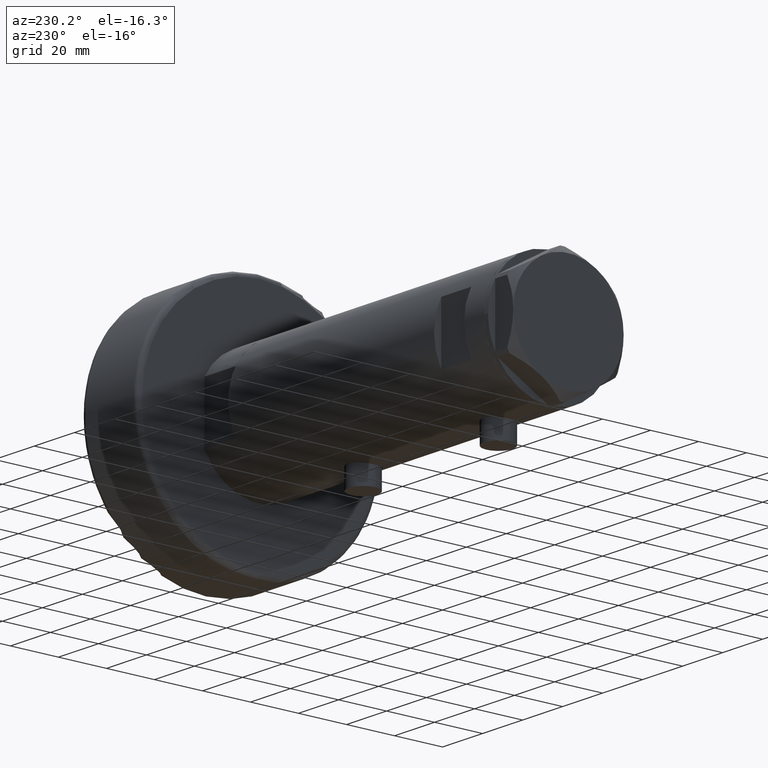
[diagram: clean part render]
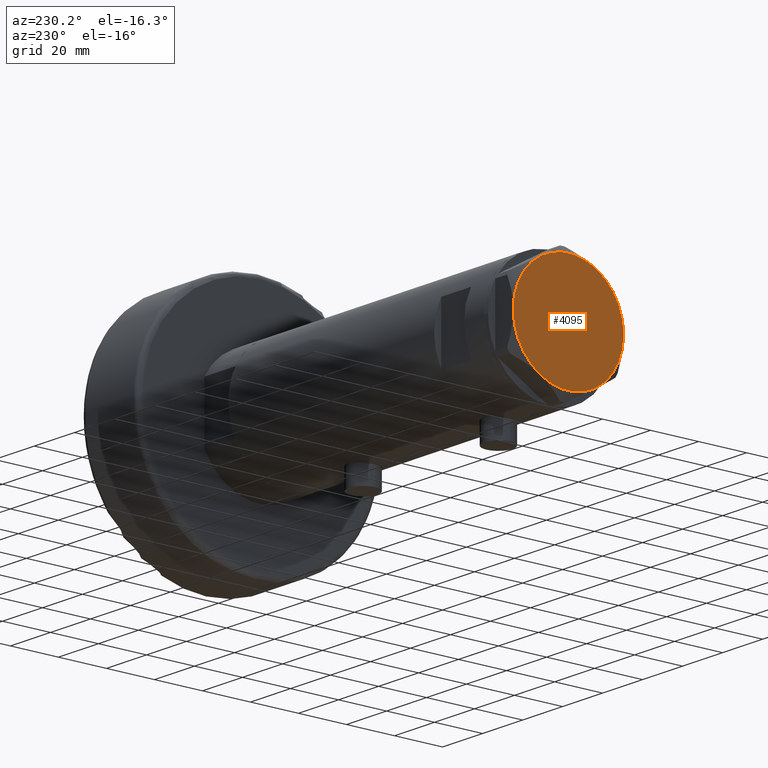
[diagram: same view with one face highlighted and labeled with its STEP entity id]
A machine part, auxiliary view. The second image highlights one B-rep face of the part: STEP entity #4095.
In plain terms, the highlighted planar face has unit normal (-1, -0, 0).
Its self-contained STEP definition (entity closure, byte-faithful):
#48 = ORIENTED_EDGE ( 'NONE', *, *, #2346, .T. ) ;
#110 = FACE_OUTER_BOUND ( 'NONE', #3020, .T. ) ;
#423 = CIRCLE ( 'NONE', #1536, 23.00000000000004619 ) ;
#429 = DIRECTION ( 'NONE',  ( 0.000000000000000000, 0.000000000000000000, 1.000000000000000000 ) ) ;
#563 = DIRECTION ( 'NONE',  ( 1.000000000000000000, 0.000000000000000000, -0.000000000000000000 ) ) ;
#647 = ORIENTED_EDGE ( 'NONE', *, *, #1404, .T. ) ;
#820 = CARTESIAN_POINT ( 'NONE',  ( 0.000000000000000000, 0.000000000000000000, 9.000000000000000000 ) ) ;
#1030 = AXIS2_PLACEMENT_3D ( 'NONE', #4911, #1735, #563 ) ;
#1112 = CIRCLE ( 'NONE', #5248, 23.00000000000004619 ) ;
#1247 = EDGE_CURVE ( 'NONE', #4931, #1373, #3893, .T. ) ;
#1252 = EDGE_CURVE ( 'NONE', #1733, #2487, #3730, .T. ) ;
#1305 = DIRECTION ( 'NONE',  ( 0.000000000000000000, 0.000000000000000000, 1.000000000000000000 ) ) ;
#1373 = VERTEX_POINT ( 'NONE', #3324 ) ;
#1404 = EDGE_CURVE ( 'NONE', #2487, #2126, #1525, .T. ) ;
#1525 = CIRCLE ( 'NONE', #2860, 23.00000000000004619 ) ;
#1536 = AXIS2_PLACEMENT_3D ( 'NONE', #2525, #1683, #4596 ) ;
#1578 = DIRECTION ( 'NONE',  ( 1.000000000000000000, 0.000000000000000000, 0.000000000000000000 ) ) ;
#1619 = ORIENTED_EDGE ( 'NONE', *, *, #1252, .T. ) ;
#1683 = DIRECTION ( 'NONE',  ( 0.000000000000000000, 0.000000000000000000, 1.000000000000000000 ) ) ;
#1733 = VERTEX_POINT ( 'NONE', #2629 ) ;
#1735 = DIRECTION ( 'NONE',  ( 0.000000000000000000, 0.000000000000000000, 1.000000000000000000 ) ) ;
#1946 = AXIS2_PLACEMENT_3D ( 'NONE', #3248, #429, #2004 ) ;
#1986 = DIRECTION ( 'NONE',  ( 0.000000000000000000, 0.000000000000000000, 1.000000000000000000 ) ) ;
#1994 = ORIENTED_EDGE ( 'NONE', *, *, #3728, .T. ) ;
#2004 = DIRECTION ( 'NONE',  ( 1.000000000000000000, 0.000000000000000000, 0.000000000000000000 ) ) ;
#2126 = VERTEX_POINT ( 'NONE', #4503 ) ;
#2162 = DIRECTION ( 'NONE',  ( 0.000000000000000000, 0.000000000000000000, 1.000000000000000000 ) ) ;
#2346 = EDGE_CURVE ( 'NONE', #4615, #4931, #4743, .T. ) ;
#2379 = AXIS2_PLACEMENT_3D ( 'NONE', #820, #1305, #2518 ) ;
#2487 = VERTEX_POINT ( 'NONE', #4096 ) ;
#2518 = DIRECTION ( 'NONE',  ( 1.000000000000000000, 0.000000000000000000, 0.000000000000000000 ) ) ;
#2525 = CARTESIAN_POINT ( 'NONE',  ( 0.000000000000000000, 0.000000000000000000, 9.000000000000000000 ) ) ;
#2629 = CARTESIAN_POINT ( 'NONE',  ( -23.00000000000004619, -8.112498833180673323E-14, 9.000000000000000000 ) ) ;
#2690 = EDGE_CURVE ( 'NONE', #1373, #1733, #423, .T. ) ;
#2860 = AXIS2_PLACEMENT_3D ( 'NONE', #4174, #2162, #3785 ) ;
#2955 = CARTESIAN_POINT ( 'NONE',  ( 0.000000000000000000, 0.000000000000000000, 9.000000000000000000 ) ) ;
#3020 = EDGE_LOOP ( 'NONE', ( #1994, #48, #3182, #4958, #1619, #647 ) ) ;
#3182 = ORIENTED_EDGE ( 'NONE', *, *, #1247, .T. ) ;
#3248 = CARTESIAN_POINT ( 'NONE',  ( 0.000000000000000000, 0.000000000000000000, 9.000000000000000000 ) ) ;
#3324 = CARTESIAN_POINT ( 'NONE',  ( -11.50000000000004441, 19.91858428704211548, 9.000000000000000000 ) ) ;
#3372 = CARTESIAN_POINT ( 'NONE',  ( 22.99999999999995026, 2.373657066004705010E-13, 9.000000000000000000 ) ) ;
#3728 = EDGE_CURVE ( 'NONE', #2126, #4615, #1112, .T. ) ;
#3730 = CIRCLE ( 'NONE', #1946, 23.00000000000004619 ) ;
#3785 = DIRECTION ( 'NONE',  ( 1.000000000000000000, 0.000000000000000000, 0.000000000000000000 ) ) ;
#3893 = CIRCLE ( 'NONE', #2379, 23.00000000000004619 ) ;
#4095 = ADVANCED_FACE ( 'NONE', ( #110 ), #4513, .T. ) ;
#4096 = CARTESIAN_POINT ( 'NONE',  ( -11.49999999999990585, -19.91858428704219364, 9.000000000000000000 ) ) ;
#4125 = DIRECTION ( 'NONE',  ( 0.000000000000000000, 0.000000000000000000, 1.000000000000000000 ) ) ;
#4174 = CARTESIAN_POINT ( 'NONE',  ( 0.000000000000000000, 0.000000000000000000, 9.000000000000000000 ) ) ;
#4495 = CARTESIAN_POINT ( 'NONE',  ( 0.000000000000000000, 0.000000000000000000, 9.000000000000000000 ) ) ;
#4503 = CARTESIAN_POINT ( 'NONE',  ( 11.50000000000018296, -19.91858428704203732, 9.000000000000000000 ) ) ;
#4513 = PLANE ( 'NONE',  #1030 ) ;
#4576 = DIRECTION ( 'NONE',  ( 1.000000000000000000, 0.000000000000000000, 0.000000000000000000 ) ) ;
#4586 = CARTESIAN_POINT ( 'NONE',  ( 11.49999999999990408, 19.91858428704219364, 9.000000000000000000 ) ) ;
#4596 = DIRECTION ( 'NONE',  ( 1.000000000000000000, 0.000000000000000000, 0.000000000000000000 ) ) ;
#4615 = VERTEX_POINT ( 'NONE', #3372 ) ;
#4743 = CIRCLE ( 'NONE', #4825, 23.00000000000004619 ) ;
#4825 = AXIS2_PLACEMENT_3D ( 'NONE', #2955, #4125, #4576 ) ;
#4911 = CARTESIAN_POINT ( 'NONE',  ( 0.000000000000000000, 0.000000000000000000, 9.000000000000000000 ) ) ;
#4931 = VERTEX_POINT ( 'NONE', #4586 ) ;
#4958 = ORIENTED_EDGE ( 'NONE', *, *, #2690, .T. ) ;
#5248 = AXIS2_PLACEMENT_3D ( 'NONE', #4495, #1986, #1578 ) ;